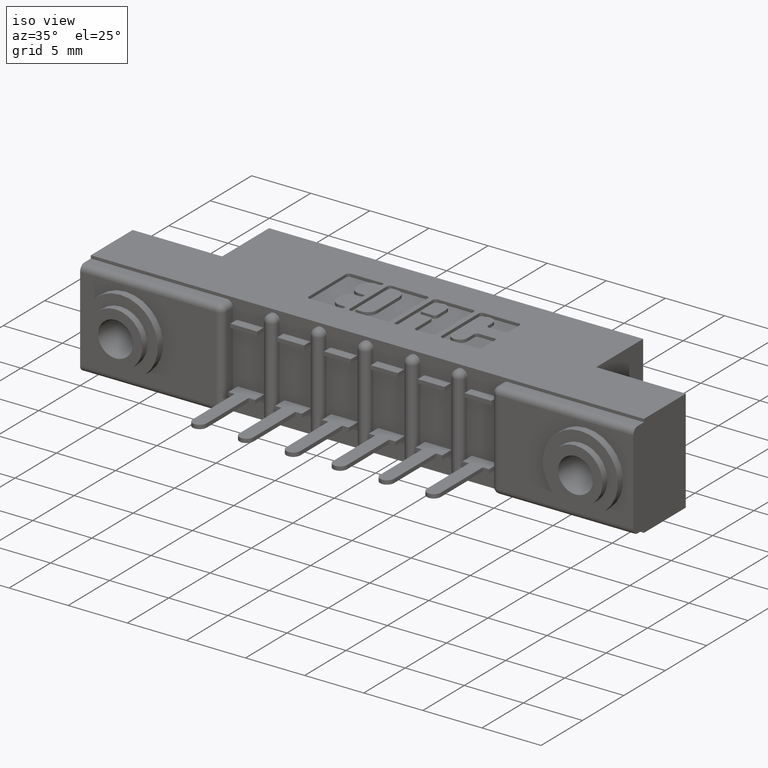
[diagram: clean part render]
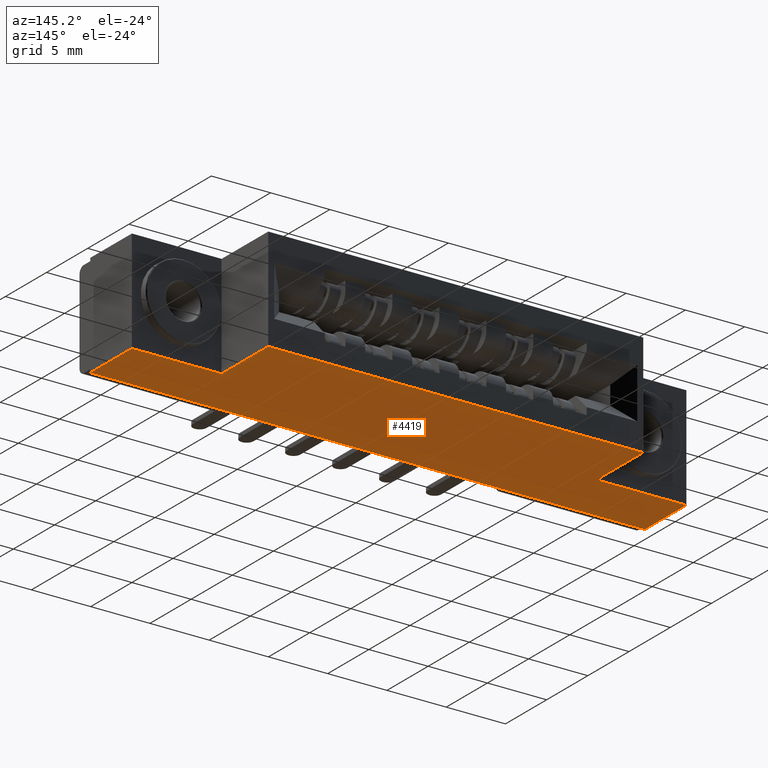
[diagram: tour spotlight — one face highlighted and labeled with its STEP entity id]
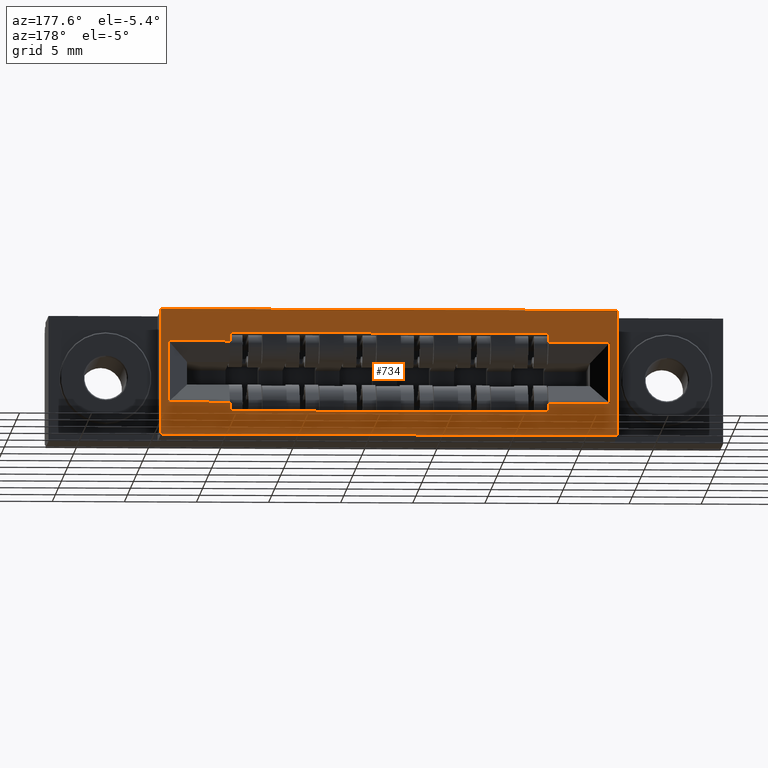
[diagram: tour spotlight — one face highlighted and labeled with its STEP entity id]
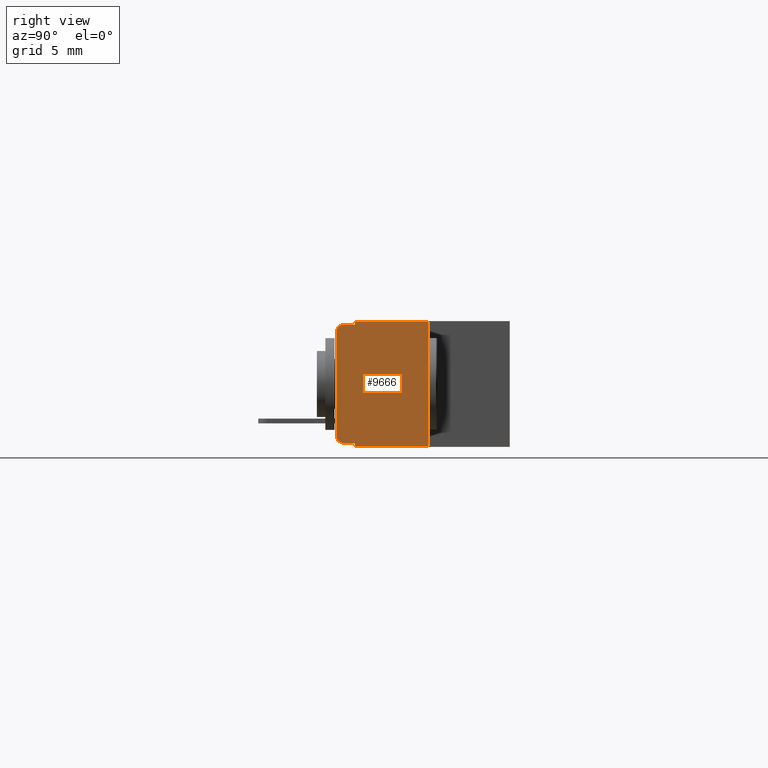
[diagram: tour spotlight — one face highlighted and labeled with its STEP entity id]
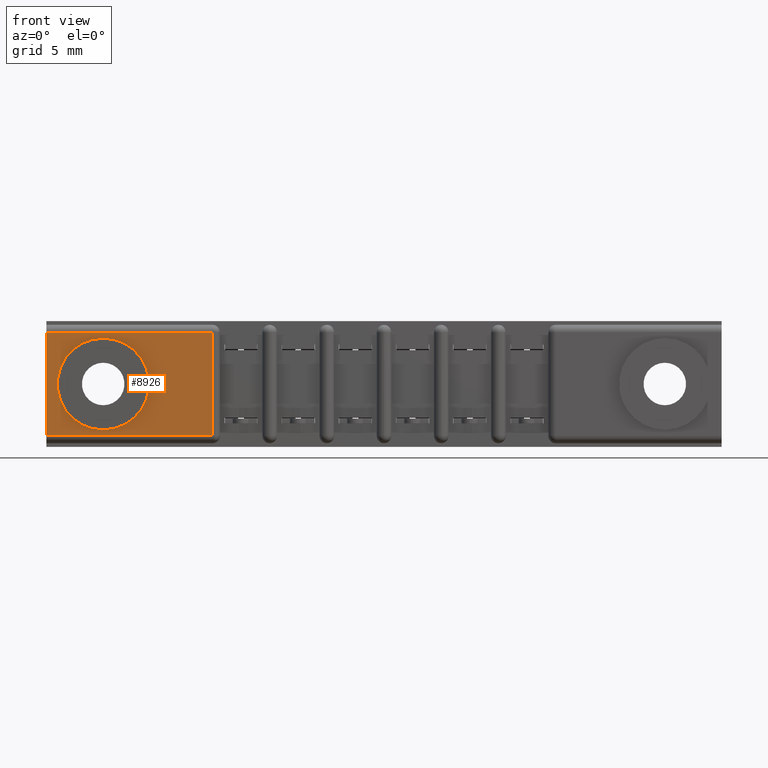
[diagram: tour spotlight — one face highlighted and labeled with its STEP entity id]
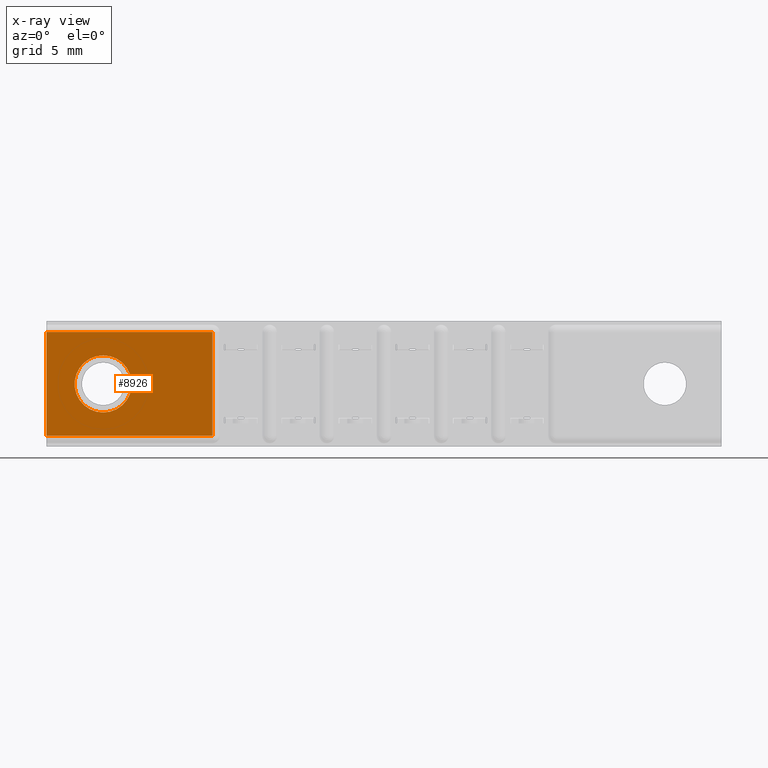
[diagram: x-ray of the same camera — body ghosted, this tour face saturated]
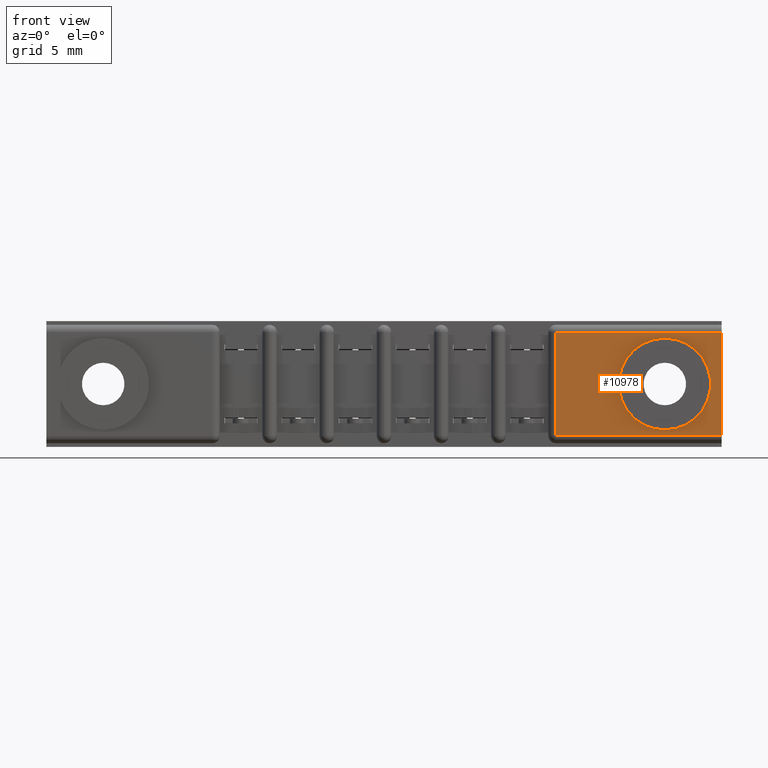
[diagram: tour spotlight — one face highlighted and labeled with its STEP entity id]
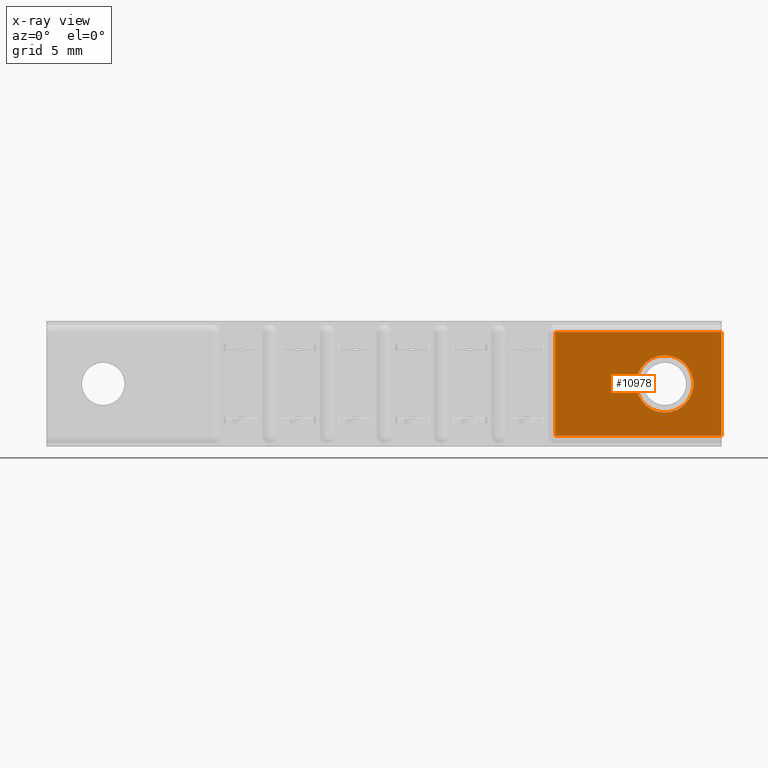
[diagram: x-ray of the same camera — body ghosted, this tour face saturated]
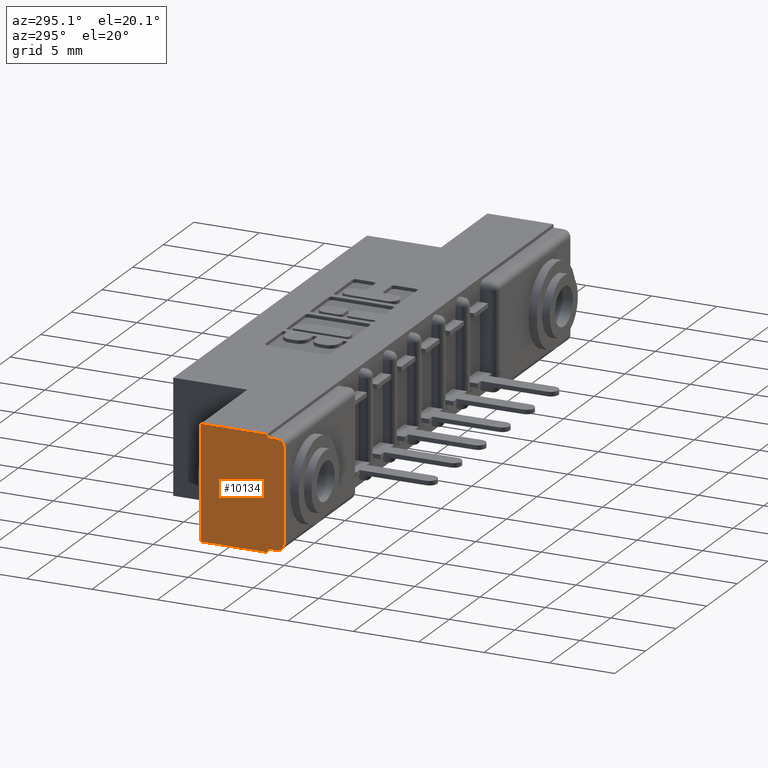
[diagram: tour spotlight — one face highlighted and labeled with its STEP entity id]
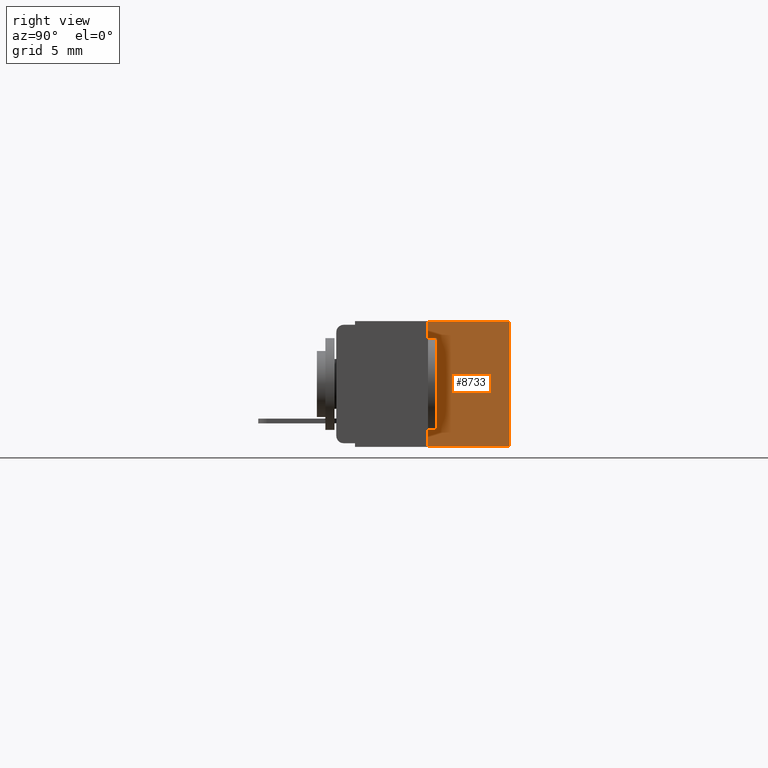
[diagram: tour spotlight — one face highlighted and labeled with its STEP entity id]
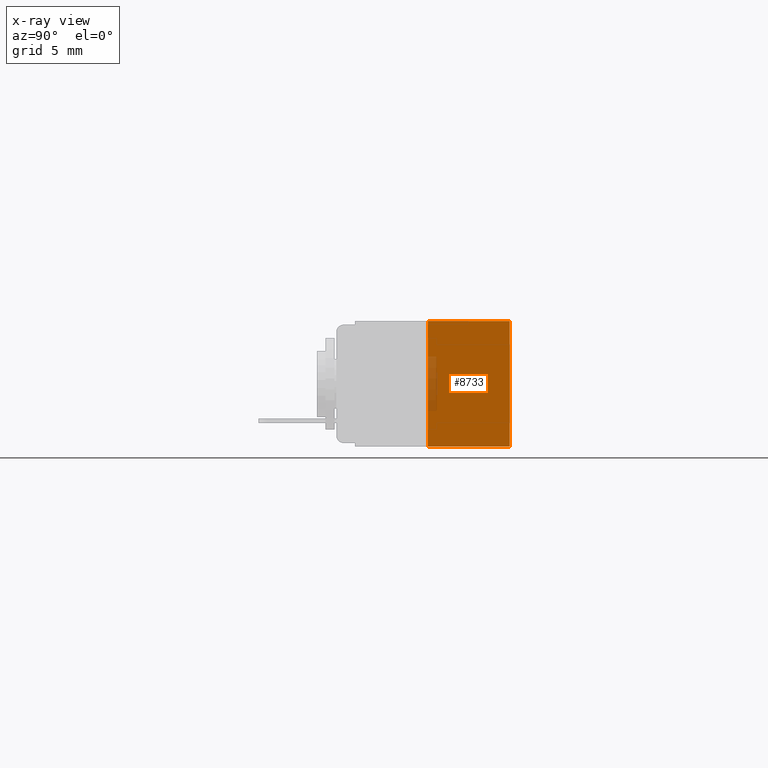
[diagram: x-ray of the same camera — body ghosted, this tour face saturated]
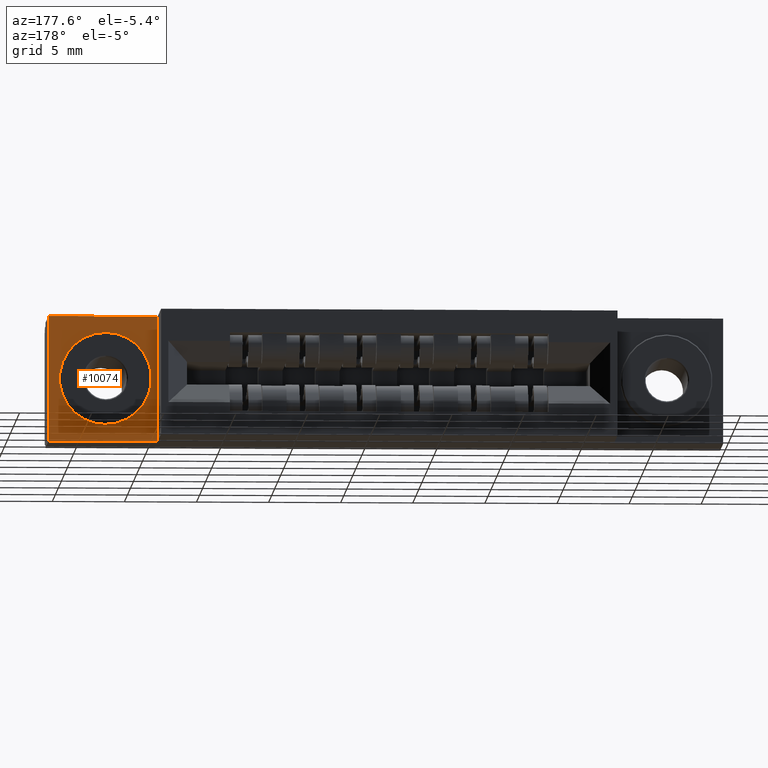
[diagram: tour spotlight — one face highlighted and labeled with its STEP entity id]
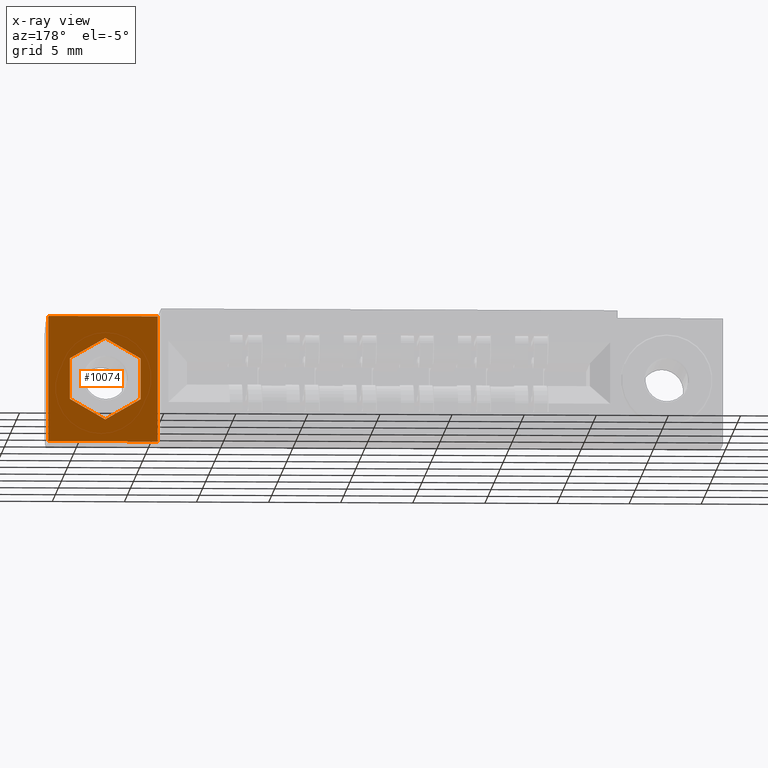
[diagram: x-ray of the same camera — body ghosted, this tour face saturated]
A machine part: a face-by-face anatomy tour. The part has 621 B-rep faces; the first image is the clean iso view, then the 8 largest visible faces are spotlighted one at a time (largest first), each with its STEP entity span.

Face 1 — auxiliary view, entity #4419. In plain terms, the highlighted planar face has unit normal (0, 0, 1).
Definition (entity closure, byte-faithful):
#124 = DIRECTION ( 'NONE',  ( -1.000000000000000000, -0.0000000000000000000, -0.0000000000000000000 ) ) ;
#137 = ORIENTED_EDGE ( 'NONE', *, *, #8705, .T. ) ;
#232 = ORIENTED_EDGE ( 'NONE', *, *, #7691, .F. ) ;
#279 = CARTESIAN_POINT ( 'NONE',  ( 1.842000000000000700, 0.05099999999999999700, -0.3430000000000000300 ) ) ;
#281 = CARTESIAN_POINT ( 'NONE',  ( 1.842000000000000700, 0.2499999999999999700, -0.3430000000000000300 ) ) ;
#431 = VECTOR ( 'NONE', #2994, 39.37007874015748100 ) ;
#638 = CARTESIAN_POINT ( 'NONE',  ( 1.544000000000000700, 0.2499999999999999700, -0.3430000000000000300 ) ) ;
#830 = LINE ( 'NONE', #1175, #10716 ) ;
#1175 = CARTESIAN_POINT ( 'NONE',  ( 0.0000000000000000000, 0.4729999999999999800, -0.3430000000000000300 ) ) ;
#1463 = EDGE_CURVE ( 'NONE', #5321, #5173, #830, .T. ) ;
#1670 = VECTOR ( 'NONE', #124, 39.37007874015748100 ) ;
#2043 = CARTESIAN_POINT ( 'NONE',  ( 0.2979999999999998200, 0.2499999999999999700, -0.3430000000000000300 ) ) ;
#2349 = VERTEX_POINT ( 'NONE', #279 ) ;
#2647 = CARTESIAN_POINT ( 'NONE',  ( 0.0000000000000000000, 0.2499999999999999700, -0.3430000000000000300 ) ) ;
#2994 = DIRECTION ( 'NONE',  ( -0.0000000000000000000, -1.000000000000000000, -0.0000000000000000000 ) ) ;
#3007 = PLANE ( 'NONE',  #7307 ) ;
#3008 = DIRECTION ( 'NONE',  ( -0.0000000000000000000, -1.000000000000000000, -0.0000000000000000000 ) ) ;
#3037 = EDGE_CURVE ( 'NONE', #7694, #5321, #4356, .T. ) ;
#3143 = EDGE_LOOP ( 'NONE', ( #137, #8911, #9532, #5886, #4189, #9821, #6607, #232 ) ) ;
#3336 = CARTESIAN_POINT ( 'NONE',  ( 0.4730000000000003600, 0.05099999999999999700, -0.3430000000000001400 ) ) ;
#4057 = CARTESIAN_POINT ( 'NONE',  ( 0.0000000000000000000, 0.05099999999999999700, -0.3430000000000000300 ) ) ;
#4109 = VECTOR ( 'NONE', #10086, 39.37007874015748100 ) ;
#4137 = DIRECTION ( 'NONE',  ( -1.000000000000000000, 0.0000000000000000000, 0.0000000000000000000 ) ) ;
#4189 = ORIENTED_EDGE ( 'NONE', *, *, #11274, .T. ) ;
#4244 = CARTESIAN_POINT ( 'NONE',  ( 0.2979999999999998200, 0.2499999999999999700, -0.3430000000000000300 ) ) ;
#4356 = LINE ( 'NONE', #8150, #9253 ) ;
#4419 = ADVANCED_FACE ( 'NONE', ( #6662 ), #3007, .F. ) ;
#4702 = DIRECTION ( 'NONE',  ( -1.000000000000000000, 0.0000000000000000000, 0.0000000000000000000 ) ) ;
#5173 = VERTEX_POINT ( 'NONE', #4057 ) ;
#5251 = VERTEX_POINT ( 'NONE', #10486 ) ;
#5321 = VERTEX_POINT ( 'NONE', #2647 ) ;
#5393 = EDGE_CURVE ( 'NONE', #5251, #7163, #8951, .T. ) ;
#5692 = EDGE_CURVE ( 'NONE', #5173, #2349, #6909, .T. ) ;
#5886 = ORIENTED_EDGE ( 'NONE', *, *, #3037, .F. ) ;
#6404 = VERTEX_POINT ( 'NONE', #638 ) ;
#6405 = EDGE_CURVE ( 'NONE', #6404, #5251, #7300, .T. ) ;
#6607 = ORIENTED_EDGE ( 'NONE', *, *, #6405, .F. ) ;
#6662 = FACE_OUTER_BOUND ( 'NONE', #3143, .T. ) ;
#6909 = LINE ( 'NONE', #3336, #8381 ) ;
#6927 = DIRECTION ( 'NONE',  ( -0.0000000000000000000, 1.000000000000000000, -0.0000000000000000000 ) ) ;
#6960 = CARTESIAN_POINT ( 'NONE',  ( 1.544000000000000700, 0.2499999999999999700, -0.3430000000000000300 ) ) ;
#7163 = VERTEX_POINT ( 'NONE', #11276 ) ;
#7300 = LINE ( 'NONE', #6960, #7417 ) ;
#7307 = AXIS2_PLACEMENT_3D ( 'NONE', #8305, #8349, #10196 ) ;
#7315 = LINE ( 'NONE', #9950, #431 ) ;
#7417 = VECTOR ( 'NONE', #6927, 39.37007874015748100 ) ;
#7465 = VERTEX_POINT ( 'NONE', #281 ) ;
#7691 = EDGE_CURVE ( 'NONE', #7465, #6404, #10799, .T. ) ;
#7694 = VERTEX_POINT ( 'NONE', #4244 ) ;
#8057 = CARTESIAN_POINT ( 'NONE',  ( 0.0000000000000000000, 0.4729999999999999800, -0.3430000000000000300 ) ) ;
#8150 = CARTESIAN_POINT ( 'NONE',  ( 0.0000000000000000000, 0.2499999999999999700, -0.3430000000000000300 ) ) ;
#8194 = VECTOR ( 'NONE', #4137, 39.37007874015748100 ) ;
#8305 = CARTESIAN_POINT ( 'NONE',  ( 0.0000000000000000000, 0.4729999999999999800, -0.3430000000000000300 ) ) ;
#8349 = DIRECTION ( 'NONE',  ( 0.0000000000000000000, 0.0000000000000000000, 1.000000000000000000 ) ) ;
#8381 = VECTOR ( 'NONE', #9387, 39.37007874015748100 ) ;
#8705 = EDGE_CURVE ( 'NONE', #7465, #2349, #7315, .T. ) ;
#8760 = LINE ( 'NONE', #2043, #4109 ) ;
#8911 = ORIENTED_EDGE ( 'NONE', *, *, #5692, .F. ) ;
#8951 = LINE ( 'NONE', #8057, #1670 ) ;
#9253 = VECTOR ( 'NONE', #4702, 39.37007874015748100 ) ;
#9385 = CARTESIAN_POINT ( 'NONE',  ( 0.0000000000000000000, 0.2499999999999999700, -0.3430000000000000300 ) ) ;
#9387 = DIRECTION ( 'NONE',  ( 1.000000000000000000, 0.0000000000000000000, 0.0000000000000000000 ) ) ;
#9532 = ORIENTED_EDGE ( 'NONE', *, *, #1463, .F. ) ;
#9821 = ORIENTED_EDGE ( 'NONE', *, *, #5393, .F. ) ;
#9950 = CARTESIAN_POINT ( 'NONE',  ( 1.842000000000000700, 0.4729999999999999800, -0.3430000000000000300 ) ) ;
#10086 = DIRECTION ( 'NONE',  ( -0.0000000000000000000, 1.000000000000000000, -0.0000000000000000000 ) ) ;
#10196 = DIRECTION ( 'NONE',  ( 1.000000000000000000, 0.0000000000000000000, -0.0000000000000000000 ) ) ;
#10486 = CARTESIAN_POINT ( 'NONE',  ( 1.544000000000000700, 0.4729999999999999800, -0.3430000000000000300 ) ) ;
#10716 = VECTOR ( 'NONE', #3008, 39.37007874015748100 ) ;
#10799 = LINE ( 'NONE', #9385, #8194 ) ;
#11274 = EDGE_CURVE ( 'NONE', #7694, #7163, #8760, .T. ) ;
#11276 = CARTESIAN_POINT ( 'NONE',  ( 0.2979999999999998200, 0.4729999999999999800, -0.3430000000000000300 ) ) ;

Face 2 — auxiliary view, entity #734. In plain terms, the highlighted planar face has unit normal (0, -1, 0).
Definition (entity closure, byte-faithful):
#6 = ORIENTED_EDGE ( 'NONE', *, *, #2442, .T. ) ;
#121 = VECTOR ( 'NONE', #7593, 39.37007874015748100 ) ;
#124 = DIRECTION ( 'NONE',  ( -1.000000000000000000, -0.0000000000000000000, -0.0000000000000000000 ) ) ;
#238 = DIRECTION ( 'NONE',  ( 0.0000000000000000000, -0.0000000000000000000, -1.000000000000000000 ) ) ;
#331 = DIRECTION ( 'NONE',  ( 1.000000000000000000, 0.0000000000000000000, 0.0000000000000000000 ) ) ;
#347 = CARTESIAN_POINT ( 'NONE',  ( 1.356000000000000500, 0.4729999999999999800, -0.06399999999999989000 ) ) ;
#566 = VECTOR ( 'NONE', #1109, 39.37007874015748100 ) ;
#659 = CARTESIAN_POINT ( 'NONE',  ( 0.4860000000000004300, 0.4729999999999999800, -0.08749999999999988300 ) ) ;
#679 = ORIENTED_EDGE ( 'NONE', *, *, #10931, .T. ) ;
#734 = ADVANCED_FACE ( 'NONE', ( #10601, #10465 ), #5543, .F. ) ;
#758 = LINE ( 'NONE', #9244, #9402 ) ;
#1011 = EDGE_CURVE ( 'NONE', #6232, #6831, #4589, .T. ) ;
#1109 = DIRECTION ( 'NONE',  ( 1.000000000000000000, 0.0000000000000000000, 0.0000000000000000000 ) ) ;
#1264 = CARTESIAN_POINT ( 'NONE',  ( 0.4860000000000004300, 0.4729999999999999800, -0.06400000000000012600 ) ) ;
#1290 = EDGE_CURVE ( 'NONE', #4215, #9331, #10588, .T. ) ;
#1294 = LINE ( 'NONE', #3972, #8578 ) ;
#1303 = EDGE_CURVE ( 'NONE', #9331, #5251, #8245, .T. ) ;
#1435 = AXIS2_PLACEMENT_3D ( 'NONE', #9944, #5657, #238 ) ;
#1496 = CARTESIAN_POINT ( 'NONE',  ( 0.3179999999999995600, 0.4729999999999999800, -0.3430000000000000300 ) ) ;
#1544 = CARTESIAN_POINT ( 'NONE',  ( 0.4860000000000004300, 0.4729999999999999800, -0.2555000000000003400 ) ) ;
#1556 = LINE ( 'NONE', #1264, #6676 ) ;
#1566 = LINE ( 'NONE', #4469, #3385 ) ;
#1602 = DIRECTION ( 'NONE',  ( 0.0000000000000000000, 0.0000000000000000000, -1.000000000000000000 ) ) ;
#1670 = VECTOR ( 'NONE', #124, 39.37007874015748100 ) ;
#1734 = CARTESIAN_POINT ( 'NONE',  ( 0.4860000000000004300, 0.4729999999999999800, -0.2790000000000001400 ) ) ;
#1855 = DIRECTION ( 'NONE',  ( -1.000000000000000000, 0.0000000000000000000, 0.0000000000000000000 ) ) ;
#1923 = CARTESIAN_POINT ( 'NONE',  ( 1.544000000000000700, 0.4729999999999999800, 0.0000000000000000000 ) ) ;
#2000 = CARTESIAN_POINT ( 'NONE',  ( 0.3179999999999995600, 0.4729999999999999800, -0.2555000000000003400 ) ) ;
#2047 = ORIENTED_EDGE ( 'NONE', *, *, #9484, .F. ) ;
#2144 = CARTESIAN_POINT ( 'NONE',  ( 0.4860000000000004300, 0.4729999999999999800, -0.06400000000000012600 ) ) ;
#2220 = VECTOR ( 'NONE', #1602, 39.37007874015748100 ) ;
#2258 = CARTESIAN_POINT ( 'NONE',  ( 1.356000000000000500, 0.4729999999999999800, -0.06399999999999989000 ) ) ;
#2339 = ORIENTED_EDGE ( 'NONE', *, *, #1011, .F. ) ;
#2346 = CARTESIAN_POINT ( 'NONE',  ( 0.5760000000000004000, 0.4729999999999999800, -0.06400000000000014000 ) ) ;
#2442 = EDGE_CURVE ( 'NONE', #2989, #6192, #1294, .T. ) ;
#2853 = CARTESIAN_POINT ( 'NONE',  ( 1.524000000000000900, 0.4729999999999999800, -0.2555000000000003400 ) ) ;
#2989 = VERTEX_POINT ( 'NONE', #4396 ) ;
#3055 = CARTESIAN_POINT ( 'NONE',  ( 1.524000000000000900, 0.4729999999999999800, -0.08749999999999988300 ) ) ;
#3157 = CARTESIAN_POINT ( 'NONE',  ( 0.2979999999999999900, 0.4729999999999999800, -1.186721140104883800E-016 ) ) ;
#3186 = EDGE_CURVE ( 'NONE', #6192, #4384, #758, .T. ) ;
#3385 = VECTOR ( 'NONE', #1855, 39.37007874015748100 ) ;
#3432 = EDGE_LOOP ( 'NONE', ( #4925, #5082, #6335, #7043 ) ) ;
#3527 = EDGE_CURVE ( 'NONE', #4384, #6831, #1566, .T. ) ;
#3766 = EDGE_CURVE ( 'NONE', #11071, #5760, #1556, .T. ) ;
#3972 = CARTESIAN_POINT ( 'NONE',  ( 0.0000000000000000000, 0.4729999999999999800, -0.2555000000000003400 ) ) ;
#4215 = VERTEX_POINT ( 'NONE', #8972 ) ;
#4252 = DIRECTION ( 'NONE',  ( -1.000000000000000000, 0.0000000000000000000, 0.0000000000000000000 ) ) ;
#4384 = VERTEX_POINT ( 'NONE', #3055 ) ;
#4396 = CARTESIAN_POINT ( 'NONE',  ( 1.356000000000000500, 0.4729999999999999800, -0.2555000000000003400 ) ) ;
#4402 = ORIENTED_EDGE ( 'NONE', *, *, #9965, .F. ) ;
#4469 = CARTESIAN_POINT ( 'NONE',  ( 0.0000000000000000000, 0.4729999999999999800, -0.08749999999999988300 ) ) ;
#4589 = LINE ( 'NONE', #6902, #2220 ) ;
#4897 = CARTESIAN_POINT ( 'NONE',  ( 1.356000000000000500, 0.4729999999999999800, -0.2790000000000001400 ) ) ;
#4925 = ORIENTED_EDGE ( 'NONE', *, *, #1303, .T. ) ;
#5032 = DIRECTION ( 'NONE',  ( 0.0000000000000000000, 0.0000000000000000000, -1.000000000000000000 ) ) ;
#5082 = ORIENTED_EDGE ( 'NONE', *, *, #5393, .T. ) ;
#5251 = VERTEX_POINT ( 'NONE', #10486 ) ;
#5393 = EDGE_CURVE ( 'NONE', #5251, #7163, #8951, .T. ) ;
#5400 = LINE ( 'NONE', #2144, #9325 ) ;
#5543 = PLANE ( 'NONE',  #1435 ) ;
#5657 = DIRECTION ( 'NONE',  ( 0.0000000000000000000, -1.000000000000000000, 0.0000000000000000000 ) ) ;
#5760 = VERTEX_POINT ( 'NONE', #11144 ) ;
#5913 = LINE ( 'NONE', #347, #10258 ) ;
#6192 = VERTEX_POINT ( 'NONE', #2853 ) ;
#6232 = VERTEX_POINT ( 'NONE', #2258 ) ;
#6282 = DIRECTION ( 'NONE',  ( -1.000000000000000000, 0.0000000000000000000, 0.0000000000000000000 ) ) ;
#6285 = EDGE_CURVE ( 'NONE', #5760, #6232, #7970, .T. ) ;
#6297 = VERTEX_POINT ( 'NONE', #4897 ) ;
#6330 = DIRECTION ( 'NONE',  ( 0.0000000000000000000, 0.0000000000000000000, -1.000000000000000000 ) ) ;
#6335 = ORIENTED_EDGE ( 'NONE', *, *, #10303, .F. ) ;
#6676 = VECTOR ( 'NONE', #8283, 39.37007874015748100 ) ;
#6817 = CARTESIAN_POINT ( 'NONE',  ( 0.0000000000000000000, 0.4729999999999999800, -0.08749999999999988300 ) ) ;
#6831 = VERTEX_POINT ( 'NONE', #10104 ) ;
#6902 = CARTESIAN_POINT ( 'NONE',  ( 1.356000000000000500, 0.4729999999999999800, -0.06399999999999989000 ) ) ;
#7014 = CARTESIAN_POINT ( 'NONE',  ( 0.0000000000000000000, 0.4729999999999999800, 0.0000000000000000000 ) ) ;
#7041 = ORIENTED_EDGE ( 'NONE', *, *, #3766, .F. ) ;
#7043 = ORIENTED_EDGE ( 'NONE', *, *, #1290, .T. ) ;
#7078 = VERTEX_POINT ( 'NONE', #1544 ) ;
#7132 = CARTESIAN_POINT ( 'NONE',  ( 1.544000000000000700, 0.4729999999999999800, 0.0000000000000000000 ) ) ;
#7143 = VERTEX_POINT ( 'NONE', #9487 ) ;
#7163 = VERTEX_POINT ( 'NONE', #11276 ) ;
#7174 = VERTEX_POINT ( 'NONE', #1734 ) ;
#7455 = DIRECTION ( 'NONE',  ( 1.000000000000000000, 0.0000000000000000000, 0.0000000000000000000 ) ) ;
#7593 = DIRECTION ( 'NONE',  ( -3.982285705049946100E-016, 0.0000000000000000000, -1.000000000000000000 ) ) ;
#7749 = ORIENTED_EDGE ( 'NONE', *, *, #11063, .T. ) ;
#7950 = VECTOR ( 'NONE', #5032, 39.37007874015748100 ) ;
#7961 = EDGE_CURVE ( 'NONE', #11214, #7078, #8880, .T. ) ;
#7970 = LINE ( 'NONE', #2346, #10781 ) ;
#8057 = CARTESIAN_POINT ( 'NONE',  ( 0.0000000000000000000, 0.4729999999999999800, -0.3430000000000000300 ) ) ;
#8081 = LINE ( 'NONE', #9694, #11221 ) ;
#8245 = LINE ( 'NONE', #1923, #10977 ) ;
#8283 = DIRECTION ( 'NONE',  ( -0.0000000000000000000, -0.0000000000000000000, 1.000000000000000000 ) ) ;
#8319 = VECTOR ( 'NONE', #331, 39.37007874015748100 ) ;
#8478 = ORIENTED_EDGE ( 'NONE', *, *, #3186, .T. ) ;
#8578 = VECTOR ( 'NONE', #7455, 39.37007874015748100 ) ;
#8774 = LINE ( 'NONE', #1496, #7950 ) ;
#8880 = LINE ( 'NONE', #9004, #8319 ) ;
#8951 = LINE ( 'NONE', #8057, #1670 ) ;
#8972 = CARTESIAN_POINT ( 'NONE',  ( 0.2979999999999998800, 0.4729999999999999800, 0.0000000000000000000 ) ) ;
#8997 = ORIENTED_EDGE ( 'NONE', *, *, #10789, .F. ) ;
#9004 = CARTESIAN_POINT ( 'NONE',  ( 0.0000000000000000000, 0.4729999999999999800, -0.2555000000000003400 ) ) ;
#9155 = DIRECTION ( 'NONE',  ( -0.0000000000000000000, -0.0000000000000000000, 1.000000000000000000 ) ) ;
#9244 = CARTESIAN_POINT ( 'NONE',  ( 1.524000000000000900, 0.4729999999999999800, -0.3430000000000000300 ) ) ;
#9325 = VECTOR ( 'NONE', #9155, 39.37007874015748100 ) ;
#9331 = VERTEX_POINT ( 'NONE', #7132 ) ;
#9347 = DIRECTION ( 'NONE',  ( 1.000000000000000000, -0.0000000000000000000, -1.897116662266849500E-016 ) ) ;
#9402 = VECTOR ( 'NONE', #10100, 39.37007874015748100 ) ;
#9426 = ORIENTED_EDGE ( 'NONE', *, *, #6285, .F. ) ;
#9435 = VECTOR ( 'NONE', #4252, 39.37007874015748100 ) ;
#9484 = EDGE_CURVE ( 'NONE', #7174, #7078, #5400, .T. ) ;
#9487 = CARTESIAN_POINT ( 'NONE',  ( 0.3179999999999995600, 0.4729999999999999800, -0.08749999999999988300 ) ) ;
#9671 = EDGE_LOOP ( 'NONE', ( #679, #9985, #2047, #4402, #8997, #6, #8478, #10695, #2339, #9426, #7041, #7749 ) ) ;
#9694 = CARTESIAN_POINT ( 'NONE',  ( 0.5760000000000004000, 0.4729999999999999800, -0.2790000000000001400 ) ) ;
#9913 = DIRECTION ( 'NONE',  ( 0.0000000000000000000, 0.0000000000000000000, -1.000000000000000000 ) ) ;
#9944 = CARTESIAN_POINT ( 'NONE',  ( 0.0000000000000000000, 0.4729999999999999800, -0.3430000000000000300 ) ) ;
#9965 = EDGE_CURVE ( 'NONE', #6297, #7174, #8081, .T. ) ;
#9985 = ORIENTED_EDGE ( 'NONE', *, *, #7961, .T. ) ;
#10007 = LINE ( 'NONE', #3157, #121 ) ;
#10100 = DIRECTION ( 'NONE',  ( 0.0000000000000000000, 0.0000000000000000000, 1.000000000000000000 ) ) ;
#10104 = CARTESIAN_POINT ( 'NONE',  ( 1.356000000000000500, 0.4729999999999999800, -0.08749999999999988300 ) ) ;
#10258 = VECTOR ( 'NONE', #9913, 39.37007874015748100 ) ;
#10303 = EDGE_CURVE ( 'NONE', #4215, #7163, #10007, .T. ) ;
#10465 = FACE_OUTER_BOUND ( 'NONE', #3432, .T. ) ;
#10486 = CARTESIAN_POINT ( 'NONE',  ( 1.544000000000000700, 0.4729999999999999800, -0.3430000000000000300 ) ) ;
#10588 = LINE ( 'NONE', #7014, #566 ) ;
#10601 = FACE_BOUND ( 'NONE', #9671, .T. ) ;
#10695 = ORIENTED_EDGE ( 'NONE', *, *, #3527, .T. ) ;
#10781 = VECTOR ( 'NONE', #9347, 39.37007874015748100 ) ;
#10789 = EDGE_CURVE ( 'NONE', #2989, #6297, #5913, .T. ) ;
#10931 = EDGE_CURVE ( 'NONE', #7143, #11214, #8774, .T. ) ;
#10934 = LINE ( 'NONE', #6817, #9435 ) ;
#10977 = VECTOR ( 'NONE', #6330, 39.37007874015748100 ) ;
#11063 = EDGE_CURVE ( 'NONE', #11071, #7143, #10934, .T. ) ;
#11071 = VERTEX_POINT ( 'NONE', #659 ) ;
#11144 = CARTESIAN_POINT ( 'NONE',  ( 0.4860000000000004300, 0.4729999999999999800, -0.06400000000000012600 ) ) ;
#11214 = VERTEX_POINT ( 'NONE', #2000 ) ;
#11221 = VECTOR ( 'NONE', #6282, 39.37007874015748100 ) ;
#11276 = CARTESIAN_POINT ( 'NONE',  ( 0.2979999999999998200, 0.4729999999999999800, -0.3430000000000000300 ) ) ;

Face 3 — right view, entity #9666. In plain terms, the highlighted planar face has unit normal (-1, 0, 0).
Definition (entity closure, byte-faithful):
#28 = CARTESIAN_POINT ( 'NONE',  ( 1.842000000000000700, 0.05099999999999999700, -0.3330000000000001300 ) ) ;
#39 = CARTESIAN_POINT ( 'NONE',  ( 1.842000000000000700, 0.05099999999999999700, 0.0000000000000000000 ) ) ;
#127 = CARTESIAN_POINT ( 'NONE',  ( 1.842000000000000700, 0.02000000000000000000, -0.01000000000000006400 ) ) ;
#212 = DIRECTION ( 'NONE',  ( 0.0000000000000000000, 0.0000000000000000000, -1.000000000000000000 ) ) ;
#279 = CARTESIAN_POINT ( 'NONE',  ( 1.842000000000000700, 0.05099999999999999700, -0.3430000000000000300 ) ) ;
#281 = CARTESIAN_POINT ( 'NONE',  ( 1.842000000000000700, 0.2499999999999999700, -0.3430000000000000300 ) ) ;
#394 = AXIS2_PLACEMENT_3D ( 'NONE', #6318, #7262, #8037 ) ;
#418 = VERTEX_POINT ( 'NONE', #9399 ) ;
#431 = VECTOR ( 'NONE', #2994, 39.37007874015748100 ) ;
#442 = AXIS2_PLACEMENT_3D ( 'NONE', #1555, #603, #1400 ) ;
#524 = VECTOR ( 'NONE', #4498, 39.37007874015748100 ) ;
#603 = DIRECTION ( 'NONE',  ( -1.000000000000000000, 0.0000000000000000000, 0.0000000000000000000 ) ) ;
#640 = ORIENTED_EDGE ( 'NONE', *, *, #8705, .F. ) ;
#675 = VECTOR ( 'NONE', #4889, 39.37007874015748100 ) ;
#681 = EDGE_LOOP ( 'NONE', ( #5223, #6054, #5918, #11367, #640, #8465, #10653, #2064, #1317, #11066 ) ) ;
#795 = VERTEX_POINT ( 'NONE', #9121 ) ;
#911 = DIRECTION ( 'NONE',  ( -0.0000000000000000000, -1.000000000000000000, -0.0000000000000000000 ) ) ;
#1000 = EDGE_CURVE ( 'NONE', #2189, #2036, #9622, .T. ) ;
#1103 = EDGE_CURVE ( 'NONE', #6571, #795, #4721, .T. ) ;
#1317 = ORIENTED_EDGE ( 'NONE', *, *, #9106, .T. ) ;
#1400 = DIRECTION ( 'NONE',  ( 0.0000000000000000000, 0.0000000000000000000, 1.000000000000000000 ) ) ;
#1555 = CARTESIAN_POINT ( 'NONE',  ( 1.842000000000000700, 0.4729999999999999800, 0.0000000000000000000 ) ) ;
#1568 = CARTESIAN_POINT ( 'NONE',  ( 1.842000000000000700, 0.05099999999999999700, -0.01000000000000006400 ) ) ;
#1628 = VECTOR ( 'NONE', #212, 39.37007874015748100 ) ;
#1639 = FACE_OUTER_BOUND ( 'NONE', #681, .T. ) ;
#2036 = VERTEX_POINT ( 'NONE', #6874 ) ;
#2064 = ORIENTED_EDGE ( 'NONE', *, *, #10286, .T. ) ;
#2189 = VERTEX_POINT ( 'NONE', #127 ) ;
#2349 = VERTEX_POINT ( 'NONE', #279 ) ;
#2363 = VECTOR ( 'NONE', #911, 39.37007874015748100 ) ;
#2483 = DIRECTION ( 'NONE',  ( -0.0000000000000000000, -1.000000000000000000, -0.0000000000000000000 ) ) ;
#2503 = LINE ( 'NONE', #39, #3475 ) ;
#2541 = CARTESIAN_POINT ( 'NONE',  ( 1.842000000000000700, 0.02000000000000000000, -0.03000000000000008900 ) ) ;
#2548 = VECTOR ( 'NONE', #7939, 39.37007874015748100 ) ;
#2994 = DIRECTION ( 'NONE',  ( -0.0000000000000000000, -1.000000000000000000, -0.0000000000000000000 ) ) ;
#3308 = LINE ( 'NONE', #4433, #524 ) ;
#3445 = DIRECTION ( 'NONE',  ( 1.000000000000000000, -0.0000000000000000000, -0.0000000000000000000 ) ) ;
#3475 = VECTOR ( 'NONE', #4289, 39.37007874015748100 ) ;
#3797 = CARTESIAN_POINT ( 'NONE',  ( 1.842000000000000700, 0.2499999999999999700, 0.0000000000000000000 ) ) ;
#4289 = DIRECTION ( 'NONE',  ( 0.0000000000000000000, 0.0000000000000000000, -1.000000000000000000 ) ) ;
#4433 = CARTESIAN_POINT ( 'NONE',  ( 1.842000000000000700, 0.4729999999999999800, 0.0000000000000000000 ) ) ;
#4498 = DIRECTION ( 'NONE',  ( -0.0000000000000000000, -1.000000000000000000, -0.0000000000000000000 ) ) ;
#4721 = LINE ( 'NONE', #5104, #2363 ) ;
#4840 = CIRCLE ( 'NONE', #394, 0.01999999999999999000 ) ;
#4889 = DIRECTION ( 'NONE',  ( 0.0000000000000000000, 0.0000000000000000000, -1.000000000000000000 ) ) ;
#5104 = CARTESIAN_POINT ( 'NONE',  ( 1.842000000000000700, 0.05099999999999999700, -0.3330000000000001300 ) ) ;
#5178 = CARTESIAN_POINT ( 'NONE',  ( 1.842000000000000700, 0.2499999999999999700, 0.0000000000000000000 ) ) ;
#5223 = ORIENTED_EDGE ( 'NONE', *, *, #8438, .T. ) ;
#5389 = LINE ( 'NONE', #10108, #675 ) ;
#5687 = VECTOR ( 'NONE', #2483, 39.37007874015748100 ) ;
#5801 = VERTEX_POINT ( 'NONE', #11112 ) ;
#5906 = EDGE_CURVE ( 'NONE', #6571, #2349, #2503, .T. ) ;
#5914 = PLANE ( 'NONE',  #442 ) ;
#5918 = ORIENTED_EDGE ( 'NONE', *, *, #1103, .F. ) ;
#5930 = VERTEX_POINT ( 'NONE', #5178 ) ;
#6054 = ORIENTED_EDGE ( 'NONE', *, *, #6727, .T. ) ;
#6318 = CARTESIAN_POINT ( 'NONE',  ( 1.842000000000000700, 0.02000000000000000000, -0.3130000000000001100 ) ) ;
#6571 = VERTEX_POINT ( 'NONE', #28 ) ;
#6727 = EDGE_CURVE ( 'NONE', #418, #795, #4840, .T. ) ;
#6874 = CARTESIAN_POINT ( 'NONE',  ( 1.842000000000000700, 0.0000000000000000000, -0.03000000000000008900 ) ) ;
#7010 = LINE ( 'NONE', #3797, #1628 ) ;
#7044 = CARTESIAN_POINT ( 'NONE',  ( 1.842000000000000700, 0.0000000000000000000, 0.0000000000000000000 ) ) ;
#7262 = DIRECTION ( 'NONE',  ( 1.000000000000000000, -0.0000000000000000000, -0.0000000000000000000 ) ) ;
#7275 = EDGE_CURVE ( 'NONE', #5930, #10952, #3308, .T. ) ;
#7315 = LINE ( 'NONE', #9950, #431 ) ;
#7465 = VERTEX_POINT ( 'NONE', #281 ) ;
#7542 = CARTESIAN_POINT ( 'NONE',  ( 1.842000000000000700, 0.05099999999999999700, 0.0000000000000000000 ) ) ;
#7939 = DIRECTION ( 'NONE',  ( 0.0000000000000000000, 0.0000000000000000000, -1.000000000000000000 ) ) ;
#8037 = DIRECTION ( 'NONE',  ( 0.0000000000000000000, 0.0000000000000000000, 1.000000000000000000 ) ) ;
#8438 = EDGE_CURVE ( 'NONE', #2036, #418, #10084, .T. ) ;
#8465 = ORIENTED_EDGE ( 'NONE', *, *, #10060, .F. ) ;
#8705 = EDGE_CURVE ( 'NONE', #7465, #2349, #7315, .T. ) ;
#9106 = EDGE_CURVE ( 'NONE', #5801, #2189, #10963, .T. ) ;
#9121 = CARTESIAN_POINT ( 'NONE',  ( 1.842000000000000700, 0.02000000000000000000, -0.3330000000000001300 ) ) ;
#9399 = CARTESIAN_POINT ( 'NONE',  ( 1.842000000000000700, 0.0000000000000000000, -0.3130000000000001100 ) ) ;
#9423 = DIRECTION ( 'NONE',  ( 0.0000000000000000000, 0.0000000000000000000, 1.000000000000000000 ) ) ;
#9622 = CIRCLE ( 'NONE', #10492, 0.02000000000000000000 ) ;
#9666 = ADVANCED_FACE ( 'NONE', ( #1639 ), #5914, .F. ) ;
#9950 = CARTESIAN_POINT ( 'NONE',  ( 1.842000000000000700, 0.4729999999999999800, -0.3430000000000000300 ) ) ;
#10060 = EDGE_CURVE ( 'NONE', #5930, #7465, #7010, .T. ) ;
#10084 = LINE ( 'NONE', #7044, #2548 ) ;
#10108 = CARTESIAN_POINT ( 'NONE',  ( 1.842000000000000700, 0.05099999999999999700, 0.0000000000000000000 ) ) ;
#10286 = EDGE_CURVE ( 'NONE', #10952, #5801, #5389, .T. ) ;
#10492 = AXIS2_PLACEMENT_3D ( 'NONE', #2541, #3445, #9423 ) ;
#10653 = ORIENTED_EDGE ( 'NONE', *, *, #7275, .T. ) ;
#10952 = VERTEX_POINT ( 'NONE', #7542 ) ;
#10963 = LINE ( 'NONE', #1568, #5687 ) ;
#11066 = ORIENTED_EDGE ( 'NONE', *, *, #1000, .T. ) ;
#11112 = CARTESIAN_POINT ( 'NONE',  ( 1.842000000000000700, 0.05099999999999999700, -0.01000000000000006400 ) ) ;
#11367 = ORIENTED_EDGE ( 'NONE', *, *, #5906, .T. ) ;

Face 4 — front view, entity #8926. An x-ray twin of the same camera follows (body ghosted, this face saturated) — the face is partly hidden behind the body. In plain terms, the highlighted planar face has unit normal (0, -1, 0).
Definition (entity closure, byte-faithful):
#288 = LINE ( 'NONE', #5665, #5127 ) ;
#657 = AXIS2_PLACEMENT_3D ( 'NONE', #4728, #4796, #2087 ) ;
#757 = CIRCLE ( 'NONE', #6277, 0.07800000000000000000 ) ;
#1192 = CARTESIAN_POINT ( 'NONE',  ( 0.4529999999999999000, 0.0000000000000000000, -0.03000000000000007200 ) ) ;
#1197 = CARTESIAN_POINT ( 'NONE',  ( 0.0000000000000000000, 0.0000000000000000000, -0.03000000000000006500 ) ) ;
#1478 = ORIENTED_EDGE ( 'NONE', *, *, #8912, .T. ) ;
#2087 = DIRECTION ( 'NONE',  ( 0.0000000000000000000, 0.0000000000000000000, -1.000000000000000000 ) ) ;
#2120 = PLANE ( 'NONE',  #10349 ) ;
#2406 = VERTEX_POINT ( 'NONE', #1192 ) ;
#3332 = FACE_OUTER_BOUND ( 'NONE', #5902, .T. ) ;
#3409 = CARTESIAN_POINT ( 'NONE',  ( 1.083812417245411700E-017, 0.0000000000000000000, -0.03000000000000006500 ) ) ;
#3746 = EDGE_CURVE ( 'NONE', #11070, #6632, #10498, .T. ) ;
#3979 = ORIENTED_EDGE ( 'NONE', *, *, #4308, .F. ) ;
#4284 = FACE_BOUND ( 'NONE', #7416, .T. ) ;
#4308 = EDGE_CURVE ( 'NONE', #7891, #10820, #6936, .T. ) ;
#4568 = CARTESIAN_POINT ( 'NONE',  ( 0.4530000000000003500, 0.0000000000000000000, -0.3130000000000001100 ) ) ;
#4728 = CARTESIAN_POINT ( 'NONE',  ( 0.1550000000000003900, 0.0000000000000000000, -0.1715000000000000700 ) ) ;
#4796 = DIRECTION ( 'NONE',  ( 0.0000000000000000000, -1.000000000000000000, 0.0000000000000000000 ) ) ;
#5127 = VECTOR ( 'NONE', #8257, 39.37007874015748100 ) ;
#5332 = EDGE_CURVE ( 'NONE', #2406, #10820, #6646, .T. ) ;
#5665 = CARTESIAN_POINT ( 'NONE',  ( 0.0000000000000000000, 0.0000000000000000000, -0.3130000000000001100 ) ) ;
#5902 = EDGE_LOOP ( 'NONE', ( #9366, #9210, #3979, #1478 ) ) ;
#6019 = CARTESIAN_POINT ( 'NONE',  ( 0.4529999999999999000, 0.0000000000000000000, -0.03000000000000008900 ) ) ;
#6277 = AXIS2_PLACEMENT_3D ( 'NONE', #8959, #6315, #8033 ) ;
#6279 = CARTESIAN_POINT ( 'NONE',  ( 0.1550000000000003900, 0.0000000000000000000, -0.09350000000000006900 ) ) ;
#6315 = DIRECTION ( 'NONE',  ( 0.0000000000000000000, -1.000000000000000000, 0.0000000000000000000 ) ) ;
#6509 = EDGE_CURVE ( 'NONE', #7822, #2406, #10832, .T. ) ;
#6632 = VERTEX_POINT ( 'NONE', #6279 ) ;
#6645 = DIRECTION ( 'NONE',  ( 0.0000000000000000000, -0.0000000000000000000, -1.000000000000000000 ) ) ;
#6646 = LINE ( 'NONE', #3409, #9346 ) ;
#6936 = LINE ( 'NONE', #8016, #10749 ) ;
#6975 = CARTESIAN_POINT ( 'NONE',  ( 0.1550000000000003900, 0.0000000000000000000, -0.2495000000000000600 ) ) ;
#7416 = EDGE_LOOP ( 'NONE', ( #10752, #8218 ) ) ;
#7822 = VERTEX_POINT ( 'NONE', #4568 ) ;
#7891 = VERTEX_POINT ( 'NONE', #8046 ) ;
#8016 = CARTESIAN_POINT ( 'NONE',  ( 0.0000000000000000000, 0.0000000000000000000, 0.0000000000000000000 ) ) ;
#8033 = DIRECTION ( 'NONE',  ( 0.0000000000000000000, 0.0000000000000000000, -1.000000000000000000 ) ) ;
#8046 = CARTESIAN_POINT ( 'NONE',  ( 0.0000000000000000000, 0.0000000000000000000, -0.3130000000000001100 ) ) ;
#8096 = DIRECTION ( 'NONE',  ( -0.0000000000000000000, -0.0000000000000000000, 1.000000000000000000 ) ) ;
#8218 = ORIENTED_EDGE ( 'NONE', *, *, #8541, .F. ) ;
#8257 = DIRECTION ( 'NONE',  ( 1.000000000000000000, 0.0000000000000000000, 0.0000000000000000000 ) ) ;
#8541 = EDGE_CURVE ( 'NONE', #6632, #11070, #757, .T. ) ;
#8912 = EDGE_CURVE ( 'NONE', #7891, #7822, #288, .T. ) ;
#8926 = ADVANCED_FACE ( 'NONE', ( #4284, #3332 ), #2120, .T. ) ;
#8959 = CARTESIAN_POINT ( 'NONE',  ( 0.1550000000000003900, 0.0000000000000000000, -0.1715000000000000700 ) ) ;
#9128 = CARTESIAN_POINT ( 'NONE',  ( 0.0000000000000000000, 0.0000000000000000000, -0.3430000000000000300 ) ) ;
#9210 = ORIENTED_EDGE ( 'NONE', *, *, #5332, .T. ) ;
#9346 = VECTOR ( 'NONE', #11237, 39.37007874015748100 ) ;
#9366 = ORIENTED_EDGE ( 'NONE', *, *, #6509, .T. ) ;
#9606 = VECTOR ( 'NONE', #10276, 39.37007874015748100 ) ;
#10276 = DIRECTION ( 'NONE',  ( -1.592914282019978200E-015, -0.0000000000000000000, 1.000000000000000000 ) ) ;
#10349 = AXIS2_PLACEMENT_3D ( 'NONE', #9128, #11116, #6645 ) ;
#10498 = CIRCLE ( 'NONE', #657, 0.07800000000000000000 ) ;
#10749 = VECTOR ( 'NONE', #8096, 39.37007874015748100 ) ;
#10752 = ORIENTED_EDGE ( 'NONE', *, *, #3746, .F. ) ;
#10820 = VERTEX_POINT ( 'NONE', #1197 ) ;
#10832 = LINE ( 'NONE', #6019, #9606 ) ;
#11070 = VERTEX_POINT ( 'NONE', #6975 ) ;
#11116 = DIRECTION ( 'NONE',  ( 0.0000000000000000000, -1.000000000000000000, 0.0000000000000000000 ) ) ;
#11237 = DIRECTION ( 'NONE',  ( -1.000000000000000000, -0.0000000000000000000, 0.0000000000000000000 ) ) ;

Face 5 — front view, entity #10978. An x-ray twin of the same camera follows (body ghosted, this face saturated) — the face is partly hidden behind the body. In plain terms, the highlighted planar face has unit normal (0, -1, 0).
Definition (entity closure, byte-faithful):
#418 = VERTEX_POINT ( 'NONE', #9399 ) ;
#510 = VECTOR ( 'NONE', #912, 39.37007874015748100 ) ;
#548 = VECTOR ( 'NONE', #11286, 39.37007874015748100 ) ;
#912 = DIRECTION ( 'NONE',  ( 1.991142852524972300E-015, -0.0000000000000000000, -1.000000000000000000 ) ) ;
#934 = FACE_OUTER_BOUND ( 'NONE', #1633, .T. ) ;
#1095 = ORIENTED_EDGE ( 'NONE', *, *, #8438, .F. ) ;
#1190 = LINE ( 'NONE', #5486, #510 ) ;
#1339 = DIRECTION ( 'NONE',  ( 0.0000000000000000000, -0.0000000000000000000, -1.000000000000000000 ) ) ;
#1474 = CARTESIAN_POINT ( 'NONE',  ( 1.686999999999999800, 0.0000000000000000000, -0.09349999999999981900 ) ) ;
#1633 = EDGE_LOOP ( 'NONE', ( #9866, #4397, #1095, #10269 ) ) ;
#1752 = ORIENTED_EDGE ( 'NONE', *, *, #6089, .F. ) ;
#2029 = CARTESIAN_POINT ( 'NONE',  ( 1.389000000000000500, 0.0000000000000000000, -0.03000000000000008900 ) ) ;
#2036 = VERTEX_POINT ( 'NONE', #6874 ) ;
#2548 = VECTOR ( 'NONE', #7939, 39.37007874015748100 ) ;
#2627 = EDGE_CURVE ( 'NONE', #9166, #4445, #7369, .T. ) ;
#2635 = CARTESIAN_POINT ( 'NONE',  ( 1.686999999999999800, 0.0000000000000000000, -0.1714999999999999000 ) ) ;
#2765 = CARTESIAN_POINT ( 'NONE',  ( 1.842000000000000700, 0.0000000000000000000, -0.3130000000000001100 ) ) ;
#2912 = LINE ( 'NONE', #4313, #548 ) ;
#3032 = VECTOR ( 'NONE', #6302, 39.37007874015748100 ) ;
#3497 = AXIS2_PLACEMENT_3D ( 'NONE', #6134, #5298, #5732 ) ;
#4235 = VERTEX_POINT ( 'NONE', #2029 ) ;
#4313 = CARTESIAN_POINT ( 'NONE',  ( 0.0000000000000000000, 0.0000000000000000000, -0.03000000000000008900 ) ) ;
#4397 = ORIENTED_EDGE ( 'NONE', *, *, #7230, .T. ) ;
#4445 = VERTEX_POINT ( 'NONE', #1474 ) ;
#4475 = CARTESIAN_POINT ( 'NONE',  ( 1.389000000000000500, 0.0000000000000000000, -0.3130000000000000600 ) ) ;
#4808 = VERTEX_POINT ( 'NONE', #4475 ) ;
#5264 = DIRECTION ( 'NONE',  ( 0.0000000000000000000, 0.0000000000000000000, 1.000000000000000000 ) ) ;
#5298 = DIRECTION ( 'NONE',  ( 0.0000000000000000000, -1.000000000000000000, 0.0000000000000000000 ) ) ;
#5377 = FACE_BOUND ( 'NONE', #6375, .T. ) ;
#5387 = LINE ( 'NONE', #2765, #3032 ) ;
#5486 = CARTESIAN_POINT ( 'NONE',  ( 1.389000000000000500, 0.0000000000000000000, -0.3130000000000000000 ) ) ;
#5732 = DIRECTION ( 'NONE',  ( 0.0000000000000000000, 0.0000000000000000000, 1.000000000000000000 ) ) ;
#5935 = AXIS2_PLACEMENT_3D ( 'NONE', #6669, #7615, #1339 ) ;
#6089 = EDGE_CURVE ( 'NONE', #4445, #9166, #8652, .T. ) ;
#6134 = CARTESIAN_POINT ( 'NONE',  ( 1.686999999999999800, 0.0000000000000000000, -0.1714999999999999000 ) ) ;
#6302 = DIRECTION ( 'NONE',  ( 1.000000000000000000, -0.0000000000000000000, -0.0000000000000000000 ) ) ;
#6375 = EDGE_LOOP ( 'NONE', ( #10362, #1752 ) ) ;
#6433 = EDGE_CURVE ( 'NONE', #2036, #4235, #2912, .T. ) ;
#6669 = CARTESIAN_POINT ( 'NONE',  ( 0.0000000000000000000, 0.0000000000000000000, -0.3430000000000000300 ) ) ;
#6706 = PLANE ( 'NONE',  #5935 ) ;
#6874 = CARTESIAN_POINT ( 'NONE',  ( 1.842000000000000700, 0.0000000000000000000, -0.03000000000000008900 ) ) ;
#6941 = CARTESIAN_POINT ( 'NONE',  ( 1.686999999999999800, 0.0000000000000000000, -0.2494999999999999700 ) ) ;
#7044 = CARTESIAN_POINT ( 'NONE',  ( 1.842000000000000700, 0.0000000000000000000, 0.0000000000000000000 ) ) ;
#7076 = AXIS2_PLACEMENT_3D ( 'NONE', #2635, #10390, #5264 ) ;
#7230 = EDGE_CURVE ( 'NONE', #4808, #418, #5387, .T. ) ;
#7369 = CIRCLE ( 'NONE', #7076, 0.07800000000000008300 ) ;
#7615 = DIRECTION ( 'NONE',  ( 0.0000000000000000000, -1.000000000000000000, 0.0000000000000000000 ) ) ;
#7873 = EDGE_CURVE ( 'NONE', #4235, #4808, #1190, .T. ) ;
#7939 = DIRECTION ( 'NONE',  ( 0.0000000000000000000, 0.0000000000000000000, -1.000000000000000000 ) ) ;
#8438 = EDGE_CURVE ( 'NONE', #2036, #418, #10084, .T. ) ;
#8652 = CIRCLE ( 'NONE', #3497, 0.07800000000000008300 ) ;
#9166 = VERTEX_POINT ( 'NONE', #6941 ) ;
#9399 = CARTESIAN_POINT ( 'NONE',  ( 1.842000000000000700, 0.0000000000000000000, -0.3130000000000001100 ) ) ;
#9866 = ORIENTED_EDGE ( 'NONE', *, *, #7873, .T. ) ;
#10084 = LINE ( 'NONE', #7044, #2548 ) ;
#10269 = ORIENTED_EDGE ( 'NONE', *, *, #6433, .T. ) ;
#10362 = ORIENTED_EDGE ( 'NONE', *, *, #2627, .F. ) ;
#10390 = DIRECTION ( 'NONE',  ( 0.0000000000000000000, -1.000000000000000000, 0.0000000000000000000 ) ) ;
#10978 = ADVANCED_FACE ( 'NONE', ( #5377, #934 ), #6706, .T. ) ;
#11286 = DIRECTION ( 'NONE',  ( -1.000000000000000000, 0.0000000000000000000, 0.0000000000000000000 ) ) ;

Face 6 — auxiliary view, entity #10134. In plain terms, the highlighted planar face has unit normal (1, 0, 0).
Definition (entity closure, byte-faithful):
#7 = DIRECTION ( 'NONE',  ( -1.000000000000000000, 0.0000000000000000000, -0.0000000000000000000 ) ) ;
#258 = CARTESIAN_POINT ( 'NONE',  ( 0.0000000000000000000, 0.4729999999999999800, 0.0000000000000000000 ) ) ;
#351 = ORIENTED_EDGE ( 'NONE', *, *, #3947, .T. ) ;
#593 = EDGE_CURVE ( 'NONE', #7040, #1813, #3637, .T. ) ;
#711 = CARTESIAN_POINT ( 'NONE',  ( 1.083812417245411700E-017, 0.05099999999999999700, -0.3330000000000001300 ) ) ;
#769 = CARTESIAN_POINT ( 'NONE',  ( 0.0000000000000000000, 0.05099999999999999700, 0.0000000000000000000 ) ) ;
#830 = LINE ( 'NONE', #1175, #10716 ) ;
#1175 = CARTESIAN_POINT ( 'NONE',  ( 0.0000000000000000000, 0.4729999999999999800, -0.3430000000000000300 ) ) ;
#1197 = CARTESIAN_POINT ( 'NONE',  ( 0.0000000000000000000, 0.0000000000000000000, -0.03000000000000006500 ) ) ;
#1252 = PLANE ( 'NONE',  #4599 ) ;
#1372 = DIRECTION ( 'NONE',  ( -0.0000000000000000000, -1.000000000000000000, -0.0000000000000000000 ) ) ;
#1463 = EDGE_CURVE ( 'NONE', #5321, #5173, #830, .T. ) ;
#1653 = ORIENTED_EDGE ( 'NONE', *, *, #7633, .F. ) ;
#1813 = VERTEX_POINT ( 'NONE', #2018 ) ;
#2018 = CARTESIAN_POINT ( 'NONE',  ( 1.083812417245411700E-017, 0.02000000000000000000, -0.3330000000000001300 ) ) ;
#2038 = VECTOR ( 'NONE', #4178, 39.37007874015748100 ) ;
#2055 = VERTEX_POINT ( 'NONE', #10415 ) ;
#2247 = ORIENTED_EDGE ( 'NONE', *, *, #9250, .T. ) ;
#2423 = ORIENTED_EDGE ( 'NONE', *, *, #3891, .F. ) ;
#2457 = ORIENTED_EDGE ( 'NONE', *, *, #3538, .F. ) ;
#2497 = DIRECTION ( 'NONE',  ( 0.0000000000000000000, 0.0000000000000000000, -1.000000000000000000 ) ) ;
#2511 = DIRECTION ( 'NONE',  ( -1.000000000000000000, 0.0000000000000000000, -0.0000000000000000000 ) ) ;
#2525 = CARTESIAN_POINT ( 'NONE',  ( 1.083812417245411700E-017, 0.05099999999999999700, -0.3330000000000001300 ) ) ;
#2647 = CARTESIAN_POINT ( 'NONE',  ( 0.0000000000000000000, 0.2499999999999999700, -0.3430000000000000300 ) ) ;
#2779 = ORIENTED_EDGE ( 'NONE', *, *, #6507, .F. ) ;
#2804 = VECTOR ( 'NONE', #6084, 39.37007874015748100 ) ;
#3008 = DIRECTION ( 'NONE',  ( -0.0000000000000000000, -1.000000000000000000, -0.0000000000000000000 ) ) ;
#3109 = VECTOR ( 'NONE', #8840, 39.37007874015748100 ) ;
#3538 = EDGE_CURVE ( 'NONE', #9163, #2055, #3920, .T. ) ;
#3572 = VERTEX_POINT ( 'NONE', #10676 ) ;
#3637 = LINE ( 'NONE', #2525, #2804 ) ;
#3891 = EDGE_CURVE ( 'NONE', #3572, #9163, #10883, .T. ) ;
#3920 = LINE ( 'NONE', #7998, #3109 ) ;
#3947 = EDGE_CURVE ( 'NONE', #1813, #7891, #9798, .T. ) ;
#4003 = LINE ( 'NONE', #11134, #4982 ) ;
#4057 = CARTESIAN_POINT ( 'NONE',  ( 0.0000000000000000000, 0.05099999999999999700, -0.3430000000000000300 ) ) ;
#4178 = DIRECTION ( 'NONE',  ( 0.0000000000000000000, 0.0000000000000000000, 1.000000000000000000 ) ) ;
#4308 = EDGE_CURVE ( 'NONE', #7891, #10820, #6936, .T. ) ;
#4371 = CARTESIAN_POINT ( 'NONE',  ( 1.083812417245411700E-017, 0.02000000000000000000, -0.01000000000000006400 ) ) ;
#4443 = ORIENTED_EDGE ( 'NONE', *, *, #4308, .T. ) ;
#4574 = CIRCLE ( 'NONE', #7011, 0.02000000000000000000 ) ;
#4599 = AXIS2_PLACEMENT_3D ( 'NONE', #258, #4709, #8156 ) ;
#4709 = DIRECTION ( 'NONE',  ( 1.000000000000000000, -0.0000000000000000000, 0.0000000000000000000 ) ) ;
#4806 = EDGE_LOOP ( 'NONE', ( #4443, #2247, #2779, #2457, #2423, #1653, #7652, #7263, #10522, #351 ) ) ;
#4982 = VECTOR ( 'NONE', #5134, 39.37007874015748100 ) ;
#5128 = CARTESIAN_POINT ( 'NONE',  ( 0.0000000000000000000, 0.05099999999999999700, 0.0000000000000000000 ) ) ;
#5134 = DIRECTION ( 'NONE',  ( -0.0000000000000000000, -1.000000000000000000, -0.0000000000000000000 ) ) ;
#5141 = DIRECTION ( 'NONE',  ( 0.0000000000000000000, 0.0000000000000000000, -1.000000000000000000 ) ) ;
#5173 = VERTEX_POINT ( 'NONE', #4057 ) ;
#5321 = VERTEX_POINT ( 'NONE', #2647 ) ;
#5843 = CARTESIAN_POINT ( 'NONE',  ( 0.0000000000000000000, 0.2499999999999999700, 0.0000000000000000000 ) ) ;
#6084 = DIRECTION ( 'NONE',  ( -0.0000000000000000000, -1.000000000000000000, -0.0000000000000000000 ) ) ;
#6189 = DIRECTION ( 'NONE',  ( 0.0000000000000000000, 0.0000000000000000000, -1.000000000000000000 ) ) ;
#6507 = EDGE_CURVE ( 'NONE', #2055, #9238, #4003, .T. ) ;
#6728 = LINE ( 'NONE', #5843, #2038 ) ;
#6936 = LINE ( 'NONE', #8016, #10749 ) ;
#7011 = AXIS2_PLACEMENT_3D ( 'NONE', #7024, #7, #6189 ) ;
#7024 = CARTESIAN_POINT ( 'NONE',  ( 0.0000000000000000000, 0.02000000000000000000, -0.03000000000000006500 ) ) ;
#7040 = VERTEX_POINT ( 'NONE', #711 ) ;
#7263 = ORIENTED_EDGE ( 'NONE', *, *, #10361, .F. ) ;
#7580 = AXIS2_PLACEMENT_3D ( 'NONE', #8584, #2511, #5141 ) ;
#7633 = EDGE_CURVE ( 'NONE', #5321, #3572, #6728, .T. ) ;
#7652 = ORIENTED_EDGE ( 'NONE', *, *, #1463, .T. ) ;
#7891 = VERTEX_POINT ( 'NONE', #8046 ) ;
#7998 = CARTESIAN_POINT ( 'NONE',  ( 0.0000000000000000000, 0.05099999999999999700, 0.0000000000000000000 ) ) ;
#8016 = CARTESIAN_POINT ( 'NONE',  ( 0.0000000000000000000, 0.0000000000000000000, 0.0000000000000000000 ) ) ;
#8046 = CARTESIAN_POINT ( 'NONE',  ( 0.0000000000000000000, 0.0000000000000000000, -0.3130000000000001100 ) ) ;
#8069 = VECTOR ( 'NONE', #2497, 39.37007874015748100 ) ;
#8096 = DIRECTION ( 'NONE',  ( -0.0000000000000000000, -0.0000000000000000000, 1.000000000000000000 ) ) ;
#8156 = DIRECTION ( 'NONE',  ( 0.0000000000000000000, 0.0000000000000000000, -1.000000000000000000 ) ) ;
#8564 = VECTOR ( 'NONE', #1372, 39.37007874015748100 ) ;
#8584 = CARTESIAN_POINT ( 'NONE',  ( 0.0000000000000000000, 0.02000000000000000000, -0.3130000000000001100 ) ) ;
#8840 = DIRECTION ( 'NONE',  ( 0.0000000000000000000, 0.0000000000000000000, -1.000000000000000000 ) ) ;
#9163 = VERTEX_POINT ( 'NONE', #769 ) ;
#9238 = VERTEX_POINT ( 'NONE', #4371 ) ;
#9250 = EDGE_CURVE ( 'NONE', #10820, #9238, #4574, .T. ) ;
#9295 = FACE_OUTER_BOUND ( 'NONE', #4806, .T. ) ;
#9798 = CIRCLE ( 'NONE', #7580, 0.01999999999999999000 ) ;
#10087 = CARTESIAN_POINT ( 'NONE',  ( 0.0000000000000000000, 0.4729999999999999800, 0.0000000000000000000 ) ) ;
#10134 = ADVANCED_FACE ( 'NONE', ( #9295 ), #1252, .F. ) ;
#10361 = EDGE_CURVE ( 'NONE', #7040, #5173, #10928, .T. ) ;
#10415 = CARTESIAN_POINT ( 'NONE',  ( 1.083812417245411700E-017, 0.05099999999999999700, -0.01000000000000006400 ) ) ;
#10522 = ORIENTED_EDGE ( 'NONE', *, *, #593, .T. ) ;
#10676 = CARTESIAN_POINT ( 'NONE',  ( 0.0000000000000000000, 0.2499999999999999700, 0.0000000000000000000 ) ) ;
#10716 = VECTOR ( 'NONE', #3008, 39.37007874015748100 ) ;
#10749 = VECTOR ( 'NONE', #8096, 39.37007874015748100 ) ;
#10820 = VERTEX_POINT ( 'NONE', #1197 ) ;
#10883 = LINE ( 'NONE', #10087, #8564 ) ;
#10928 = LINE ( 'NONE', #5128, #8069 ) ;
#11134 = CARTESIAN_POINT ( 'NONE',  ( 1.083812417245411700E-017, 0.05099999999999999700, -0.01000000000000006400 ) ) ;

Face 7 — right view, entity #8733. An x-ray twin of the same camera follows (body ghosted, this face saturated) — the face is partly hidden behind the body. In plain terms, the highlighted planar face has unit normal (1, 0, 0).
Definition (entity closure, byte-faithful):
#49 = VECTOR ( 'NONE', #1387, 39.37007874015748100 ) ;
#89 = EDGE_LOOP ( 'NONE', ( #120, #3291, #3284, #11249 ) ) ;
#120 = ORIENTED_EDGE ( 'NONE', *, *, #1303, .F. ) ;
#638 = CARTESIAN_POINT ( 'NONE',  ( 1.544000000000000700, 0.2499999999999999700, -0.3430000000000000300 ) ) ;
#1303 = EDGE_CURVE ( 'NONE', #9331, #5251, #8245, .T. ) ;
#1387 = DIRECTION ( 'NONE',  ( 0.0000000000000000000, 0.0000000000000000000, -1.000000000000000000 ) ) ;
#1923 = CARTESIAN_POINT ( 'NONE',  ( 1.544000000000000700, 0.4729999999999999800, 0.0000000000000000000 ) ) ;
#1966 = EDGE_CURVE ( 'NONE', #2452, #6404, #6132, .T. ) ;
#2452 = VERTEX_POINT ( 'NONE', #8321 ) ;
#2986 = LINE ( 'NONE', #9521, #7505 ) ;
#3149 = CARTESIAN_POINT ( 'NONE',  ( 1.544000000000000700, 0.2499999999999999700, 0.0000000000000000000 ) ) ;
#3284 = ORIENTED_EDGE ( 'NONE', *, *, #1966, .T. ) ;
#3291 = ORIENTED_EDGE ( 'NONE', *, *, #8231, .F. ) ;
#4196 = DIRECTION ( 'NONE',  ( -0.0000000000000000000, 1.000000000000000000, -0.0000000000000000000 ) ) ;
#5251 = VERTEX_POINT ( 'NONE', #10486 ) ;
#5816 = PLANE ( 'NONE',  #9096 ) ;
#6132 = LINE ( 'NONE', #6651, #49 ) ;
#6330 = DIRECTION ( 'NONE',  ( 0.0000000000000000000, 0.0000000000000000000, -1.000000000000000000 ) ) ;
#6404 = VERTEX_POINT ( 'NONE', #638 ) ;
#6405 = EDGE_CURVE ( 'NONE', #6404, #5251, #7300, .T. ) ;
#6651 = CARTESIAN_POINT ( 'NONE',  ( 1.544000000000000700, 0.2499999999999999700, 0.0000000000000000000 ) ) ;
#6675 = DIRECTION ( 'NONE',  ( 0.0000000000000000000, 0.0000000000000000000, -1.000000000000000000 ) ) ;
#6927 = DIRECTION ( 'NONE',  ( -0.0000000000000000000, 1.000000000000000000, -0.0000000000000000000 ) ) ;
#6960 = CARTESIAN_POINT ( 'NONE',  ( 1.544000000000000700, 0.2499999999999999700, -0.3430000000000000300 ) ) ;
#7132 = CARTESIAN_POINT ( 'NONE',  ( 1.544000000000000700, 0.4729999999999999800, 0.0000000000000000000 ) ) ;
#7300 = LINE ( 'NONE', #6960, #7417 ) ;
#7417 = VECTOR ( 'NONE', #6927, 39.37007874015748100 ) ;
#7505 = VECTOR ( 'NONE', #4196, 39.37007874015748100 ) ;
#8231 = EDGE_CURVE ( 'NONE', #2452, #9331, #2986, .T. ) ;
#8245 = LINE ( 'NONE', #1923, #10977 ) ;
#8321 = CARTESIAN_POINT ( 'NONE',  ( 1.544000000000000700, 0.2499999999999999700, 0.0000000000000000000 ) ) ;
#8733 = ADVANCED_FACE ( 'NONE', ( #9202 ), #5816, .T. ) ;
#9096 = AXIS2_PLACEMENT_3D ( 'NONE', #3149, #9242, #6675 ) ;
#9202 = FACE_OUTER_BOUND ( 'NONE', #89, .T. ) ;
#9242 = DIRECTION ( 'NONE',  ( 1.000000000000000000, 0.0000000000000000000, 0.0000000000000000000 ) ) ;
#9331 = VERTEX_POINT ( 'NONE', #7132 ) ;
#9521 = CARTESIAN_POINT ( 'NONE',  ( 1.544000000000000700, 0.2499999999999999700, 0.0000000000000000000 ) ) ;
#10486 = CARTESIAN_POINT ( 'NONE',  ( 1.544000000000000700, 0.4729999999999999800, -0.3430000000000000300 ) ) ;
#10977 = VECTOR ( 'NONE', #6330, 39.37007874015748100 ) ;
#11249 = ORIENTED_EDGE ( 'NONE', *, *, #6405, .T. ) ;

Face 8 — auxiliary view, entity #10074. An x-ray twin of the same camera follows (body ghosted, this face saturated) — the face is partly hidden behind the body. In plain terms, the highlighted planar face has unit normal (0, 1, 0).
Definition (entity closure, byte-faithful):
#49 = VECTOR ( 'NONE', #1387, 39.37007874015748100 ) ;
#212 = DIRECTION ( 'NONE',  ( 0.0000000000000000000, 0.0000000000000000000, -1.000000000000000000 ) ) ;
#281 = CARTESIAN_POINT ( 'NONE',  ( 1.842000000000000700, 0.2499999999999999700, -0.3430000000000000300 ) ) ;
#330 = DIRECTION ( 'NONE',  ( 0.0000000000000000000, 0.0000000000000000000, 1.000000000000000000 ) ) ;
#551 = VECTOR ( 'NONE', #330, 39.37007874015748100 ) ;
#638 = CARTESIAN_POINT ( 'NONE',  ( 1.544000000000000700, 0.2499999999999999700, -0.3430000000000000300 ) ) ;
#1165 = CARTESIAN_POINT ( 'NONE',  ( 1.590500000000000500, 0.2499999999999999700, -0.1157856990232001300 ) ) ;
#1250 = LINE ( 'NONE', #4092, #9896 ) ;
#1387 = DIRECTION ( 'NONE',  ( 0.0000000000000000000, 0.0000000000000000000, -1.000000000000000000 ) ) ;
#1464 = DIRECTION ( 'NONE',  ( 0.0000000000000000000, 0.0000000000000000000, -1.000000000000000000 ) ) ;
#1536 = EDGE_CURVE ( 'NONE', #8290, #1806, #5267, .T. ) ;
#1585 = CARTESIAN_POINT ( 'NONE',  ( 1.590500000000000500, 0.2499999999999999700, -0.2272143009767987300 ) ) ;
#1628 = VECTOR ( 'NONE', #212, 39.37007874015748100 ) ;
#1683 = CARTESIAN_POINT ( 'NONE',  ( 1.783499999999999200, 0.2499999999999999700, -0.2272143009767975400 ) ) ;
#1806 = VERTEX_POINT ( 'NONE', #1165 ) ;
#1817 = CARTESIAN_POINT ( 'NONE',  ( 1.686999999999998700, 0.2499999999999999700, -0.06007139804640249800 ) ) ;
#1845 = EDGE_CURVE ( 'NONE', #3369, #7777, #6801, .T. ) ;
#1883 = ORIENTED_EDGE ( 'NONE', *, *, #4406, .F. ) ;
#1887 = ORIENTED_EDGE ( 'NONE', *, *, #7691, .T. ) ;
#1958 = CARTESIAN_POINT ( 'NONE',  ( 1.783499999999999200, 0.2499999999999999700, -0.2272143009767975400 ) ) ;
#1966 = EDGE_CURVE ( 'NONE', #2452, #6404, #6132, .T. ) ;
#2025 = VECTOR ( 'NONE', #5338, 39.37007874015748100 ) ;
#2027 = VECTOR ( 'NONE', #7860, 39.37007874015748100 ) ;
#2135 = CARTESIAN_POINT ( 'NONE',  ( 1.686999999999998700, 0.2499999999999999700, -0.06007139804640249800 ) ) ;
#2222 = DIRECTION ( 'NONE',  ( 0.8660254037844394800, 0.0000000000000000000, 0.4999999999999982800 ) ) ;
#2424 = ORIENTED_EDGE ( 'NONE', *, *, #1536, .F. ) ;
#2452 = VERTEX_POINT ( 'NONE', #8321 ) ;
#2964 = DIRECTION ( 'NONE',  ( 0.0000000000000000000, 0.0000000000000000000, 1.000000000000000000 ) ) ;
#3285 = LINE ( 'NONE', #1958, #2025 ) ;
#3369 = VERTEX_POINT ( 'NONE', #6825 ) ;
#3410 = ORIENTED_EDGE ( 'NONE', *, *, #1966, .F. ) ;
#3797 = CARTESIAN_POINT ( 'NONE',  ( 1.842000000000000700, 0.2499999999999999700, 0.0000000000000000000 ) ) ;
#4092 = CARTESIAN_POINT ( 'NONE',  ( 1.686999999999998700, 0.2499999999999999700, -0.2829286019535966500 ) ) ;
#4137 = DIRECTION ( 'NONE',  ( -1.000000000000000000, 0.0000000000000000000, 0.0000000000000000000 ) ) ;
#4212 = DIRECTION ( 'NONE',  ( -0.8660254037844384900, 0.0000000000000000000, 0.5000000000000002200 ) ) ;
#4267 = FACE_BOUND ( 'NONE', #4570, .T. ) ;
#4390 = VERTEX_POINT ( 'NONE', #2135 ) ;
#4406 = EDGE_CURVE ( 'NONE', #1806, #4390, #10481, .T. ) ;
#4570 = EDGE_LOOP ( 'NONE', ( #8242, #6879, #7222, #1883, #2424, #6167 ) ) ;
#4716 = VERTEX_POINT ( 'NONE', #5982 ) ;
#5178 = CARTESIAN_POINT ( 'NONE',  ( 1.842000000000000700, 0.2499999999999999700, 0.0000000000000000000 ) ) ;
#5267 = LINE ( 'NONE', #9961, #551 ) ;
#5338 = DIRECTION ( 'NONE',  ( -0.8660254037844388200, 0.0000000000000000000, -0.4999999999999998300 ) ) ;
#5498 = EDGE_CURVE ( 'NONE', #4390, #3369, #11117, .T. ) ;
#5749 = EDGE_CURVE ( 'NONE', #4716, #8290, #1250, .T. ) ;
#5834 = VECTOR ( 'NONE', #8837, 39.37007874015748900 ) ;
#5930 = VERTEX_POINT ( 'NONE', #5178 ) ;
#5982 = CARTESIAN_POINT ( 'NONE',  ( 1.686999999999998900, 0.2499999999999999700, -0.2829286019535967600 ) ) ;
#6132 = LINE ( 'NONE', #6651, #49 ) ;
#6167 = ORIENTED_EDGE ( 'NONE', *, *, #5749, .F. ) ;
#6396 = DIRECTION ( 'NONE',  ( 0.0000000000000000000, 1.000000000000000000, -0.0000000000000000000 ) ) ;
#6404 = VERTEX_POINT ( 'NONE', #638 ) ;
#6566 = AXIS2_PLACEMENT_3D ( 'NONE', #10836, #6396, #2964 ) ;
#6651 = CARTESIAN_POINT ( 'NONE',  ( 1.544000000000000700, 0.2499999999999999700, 0.0000000000000000000 ) ) ;
#6801 = LINE ( 'NONE', #8409, #8164 ) ;
#6825 = CARTESIAN_POINT ( 'NONE',  ( 1.783499999999999200, 0.2499999999999999700, -0.1157856990232018800 ) ) ;
#6879 = ORIENTED_EDGE ( 'NONE', *, *, #1845, .F. ) ;
#7010 = LINE ( 'NONE', #3797, #1628 ) ;
#7217 = EDGE_LOOP ( 'NONE', ( #3410, #11043, #10806, #1887 ) ) ;
#7222 = ORIENTED_EDGE ( 'NONE', *, *, #5498, .F. ) ;
#7465 = VERTEX_POINT ( 'NONE', #281 ) ;
#7658 = LINE ( 'NONE', #10575, #2027 ) ;
#7691 = EDGE_CURVE ( 'NONE', #7465, #6404, #10799, .T. ) ;
#7777 = VERTEX_POINT ( 'NONE', #1683 ) ;
#7860 = DIRECTION ( 'NONE',  ( 1.000000000000000000, -0.0000000000000000000, 0.0000000000000000000 ) ) ;
#7875 = EDGE_CURVE ( 'NONE', #7777, #4716, #3285, .T. ) ;
#8164 = VECTOR ( 'NONE', #1464, 39.37007874015748100 ) ;
#8194 = VECTOR ( 'NONE', #4137, 39.37007874015748100 ) ;
#8242 = ORIENTED_EDGE ( 'NONE', *, *, #7875, .F. ) ;
#8290 = VERTEX_POINT ( 'NONE', #1585 ) ;
#8321 = CARTESIAN_POINT ( 'NONE',  ( 1.544000000000000700, 0.2499999999999999700, 0.0000000000000000000 ) ) ;
#8409 = CARTESIAN_POINT ( 'NONE',  ( 1.783499999999999200, 0.2499999999999999700, -0.1157856990232018800 ) ) ;
#8837 = DIRECTION ( 'NONE',  ( 0.8660254037844377100, 0.0000000000000000000, -0.5000000000000014400 ) ) ;
#9142 = CARTESIAN_POINT ( 'NONE',  ( 1.590500000000000500, 0.2499999999999999700, -0.1157856990232001300 ) ) ;
#9385 = CARTESIAN_POINT ( 'NONE',  ( 0.0000000000000000000, 0.2499999999999999700, -0.3430000000000000300 ) ) ;
#9896 = VECTOR ( 'NONE', #4212, 39.37007874015749600 ) ;
#9961 = CARTESIAN_POINT ( 'NONE',  ( 1.590500000000000500, 0.2499999999999999700, -0.2272143009767987300 ) ) ;
#10060 = EDGE_CURVE ( 'NONE', #5930, #7465, #7010, .T. ) ;
#10074 = ADVANCED_FACE ( 'NONE', ( #4267, #10692 ), #10868, .T. ) ;
#10481 = LINE ( 'NONE', #9142, #10621 ) ;
#10557 = EDGE_CURVE ( 'NONE', #2452, #5930, #7658, .T. ) ;
#10575 = CARTESIAN_POINT ( 'NONE',  ( 0.0000000000000000000, 0.2499999999999999700, 0.0000000000000000000 ) ) ;
#10621 = VECTOR ( 'NONE', #2222, 39.37007874015748100 ) ;
#10692 = FACE_OUTER_BOUND ( 'NONE', #7217, .T. ) ;
#10799 = LINE ( 'NONE', #9385, #8194 ) ;
#10806 = ORIENTED_EDGE ( 'NONE', *, *, #10060, .T. ) ;
#10836 = CARTESIAN_POINT ( 'NONE',  ( 0.0000000000000000000, 0.2499999999999999700, 0.0000000000000000000 ) ) ;
#10868 = PLANE ( 'NONE',  #6566 ) ;
#11043 = ORIENTED_EDGE ( 'NONE', *, *, #10557, .T. ) ;
#11117 = LINE ( 'NONE', #1817, #5834 ) ;